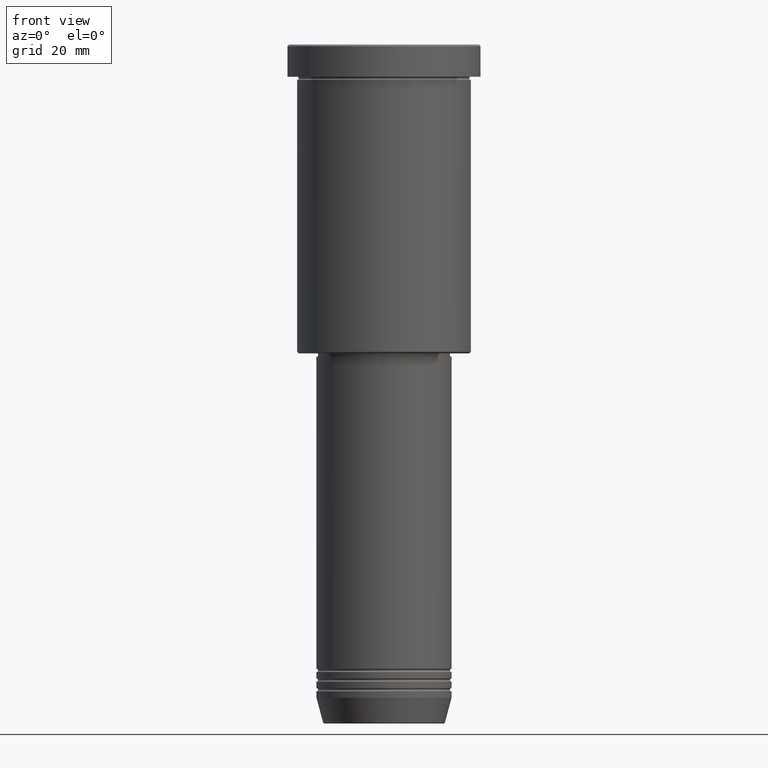
[diagram: clean part render]
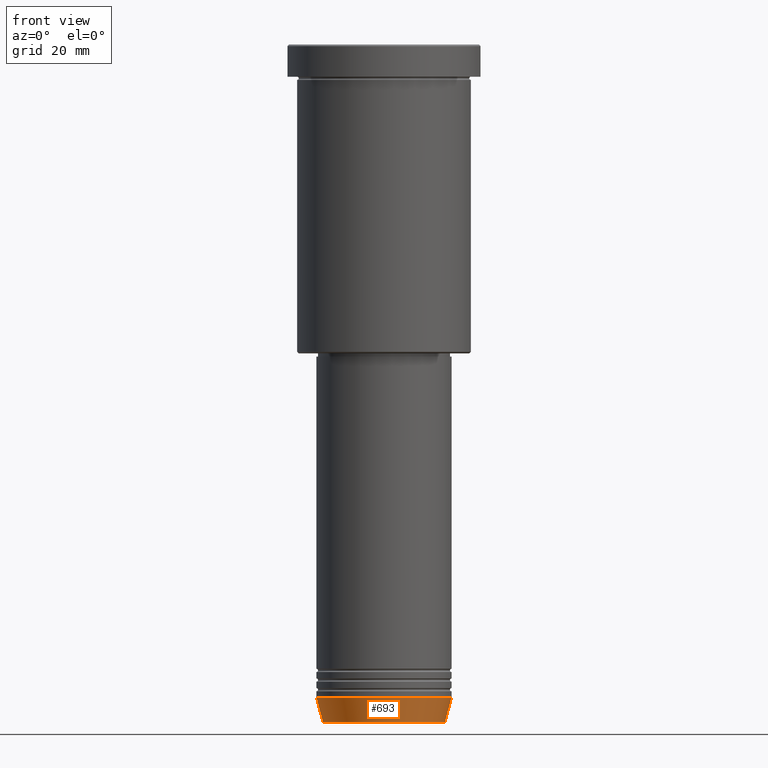
[diagram: same view with one face highlighted and labeled with its STEP entity id]
A machine part, front view. The second image highlights one B-rep face of the part: STEP entity #693.
In plain terms, the highlighted conical surface has half-angle 15 deg.
Its self-contained STEP definition (entity closure, byte-faithful):
#2 = EDGE_LOOP ( 'NONE', ( #32, #130, #8, #262 ) ) ;
#8 = ORIENTED_EDGE ( 'NONE', *, *, #928, .T. ) ;
#32 = ORIENTED_EDGE ( 'NONE', *, *, #1066, .F. ) ;
#66 = CARTESIAN_POINT ( 'NONE',  ( -21.00000000000000000, 2.571758278209441661E-15, -203.0000000000000000 ) ) ;
#130 = ORIENTED_EDGE ( 'NONE', *, *, #571, .T. ) ;
#133 = DIRECTION ( 'NONE',  ( -0.2588190451025212391, 3.169619151431771721E-17, 0.9659258262890680902 ) ) ;
#149 = VERTEX_POINT ( 'NONE', #1182 ) ;
#185 = DIRECTION ( 'NONE',  ( -0.000000000000000000, -0.000000000000000000, 1.000000000000000000 ) ) ;
#209 = DIRECTION ( 'NONE',  ( -0.000000000000000000, -0.000000000000000000, 1.000000000000000000 ) ) ;
#210 = DIRECTION ( 'NONE',  ( 1.000000000000000000, 0.000000000000000000, 0.000000000000000000 ) ) ;
#262 = ORIENTED_EDGE ( 'NONE', *, *, #1107, .F. ) ;
#273 = CARTESIAN_POINT ( 'NONE',  ( 0.000000000000000000, 0.000000000000000000, -210.6294095225512990 ) ) ;
#313 = CARTESIAN_POINT ( 'NONE',  ( 0.000000000000000000, 0.000000000000000000, -203.0000000000000000 ) ) ;
#333 = LINE ( 'NONE', #696, #837 ) ;
#369 = VERTEX_POINT ( 'NONE', #599 ) ;
#373 = CIRCLE ( 'NONE', #1081, 18.95570587970606269 ) ;
#379 = CARTESIAN_POINT ( 'NONE',  ( -21.00000000000000000, 2.571758278209441661E-15, -203.0000000000000000 ) ) ;
#391 = FACE_OUTER_BOUND ( 'NONE', #2, .T. ) ;
#476 = DIRECTION ( 'NONE',  ( -0.000000000000000000, -0.000000000000000000, 1.000000000000000000 ) ) ;
#487 = AXIS2_PLACEMENT_3D ( 'NONE', #692, #209, #936 ) ;
#497 = VERTEX_POINT ( 'NONE', #379 ) ;
#498 = CARTESIAN_POINT ( 'NONE',  ( -18.95570587970606269, 2.446581365662755730E-15, -210.6294095225512990 ) ) ;
#571 = EDGE_CURVE ( 'NONE', #1079, #149, #373, .T. ) ;
#599 = CARTESIAN_POINT ( 'NONE',  ( 21.00000000000000000, 0.000000000000000000, -203.0000000000000000 ) ) ;
#609 = LINE ( 'NONE', #66, #1118 ) ;
#692 = CARTESIAN_POINT ( 'NONE',  ( 0.000000000000000000, 0.000000000000000000, -203.0000000000000000 ) ) ;
#693 = ADVANCED_FACE ( 'NONE', ( #391 ), #1045, .T. ) ;
#696 = CARTESIAN_POINT ( 'NONE',  ( 21.00000000000000000, 0.000000000000000000, -203.0000000000000000 ) ) ;
#745 = AXIS2_PLACEMENT_3D ( 'NONE', #313, #476, #210 ) ;
#837 = VECTOR ( 'NONE', #1072, 1000.000000000000114 ) ;
#904 = DIRECTION ( 'NONE',  ( 1.000000000000000000, 0.000000000000000000, 0.000000000000000000 ) ) ;
#928 = EDGE_CURVE ( 'NONE', #149, #369, #333, .T. ) ;
#936 = DIRECTION ( 'NONE',  ( 1.000000000000000000, 0.000000000000000000, 0.000000000000000000 ) ) ;
#1002 = CIRCLE ( 'NONE', #487, 21.00000000000000000 ) ;
#1045 = CONICAL_SURFACE ( 'NONE', #745, 21.00000000000000000, 0.2617993877991499629 ) ;
#1066 = EDGE_CURVE ( 'NONE', #1079, #497, #609, .T. ) ;
#1072 = DIRECTION ( 'NONE',  ( 0.2588190451025212391, 0.000000000000000000, 0.9659258262890680902 ) ) ;
#1079 = VERTEX_POINT ( 'NONE', #498 ) ;
#1081 = AXIS2_PLACEMENT_3D ( 'NONE', #273, #185, #904 ) ;
#1107 = EDGE_CURVE ( 'NONE', #497, #369, #1002, .T. ) ;
#1118 = VECTOR ( 'NONE', #133, 1000.000000000000114 ) ;
#1182 = CARTESIAN_POINT ( 'NONE',  ( 18.95570587970606269, 0.000000000000000000, -210.6294095225512990 ) ) ;